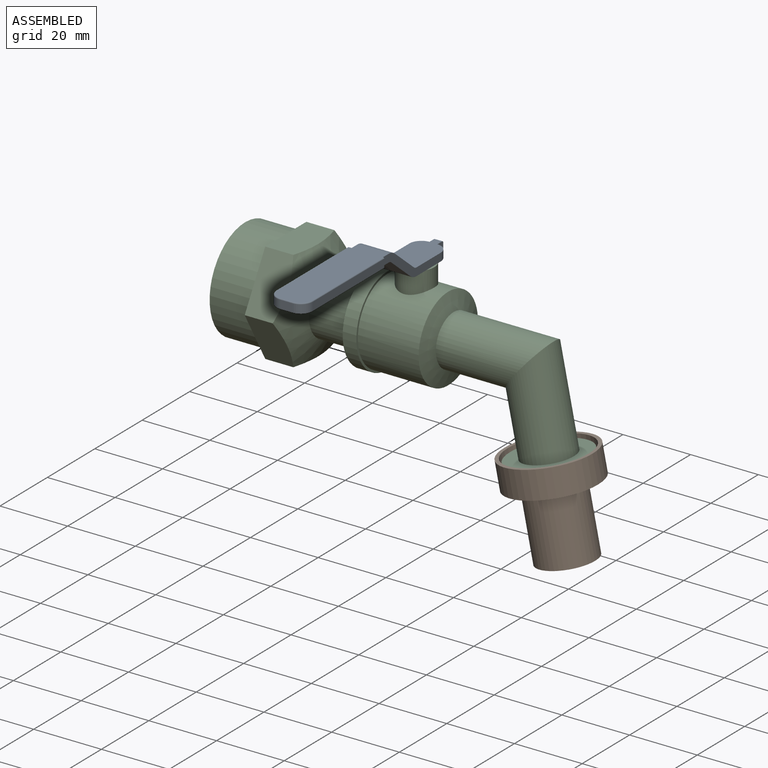
[diagram: assembled view]
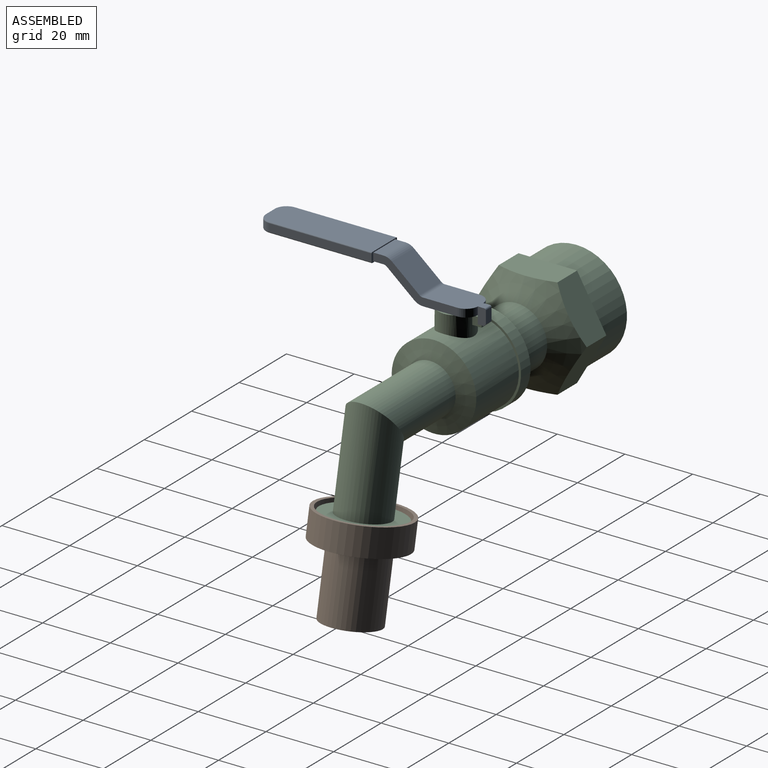
[diagram: assembled view, second angle]
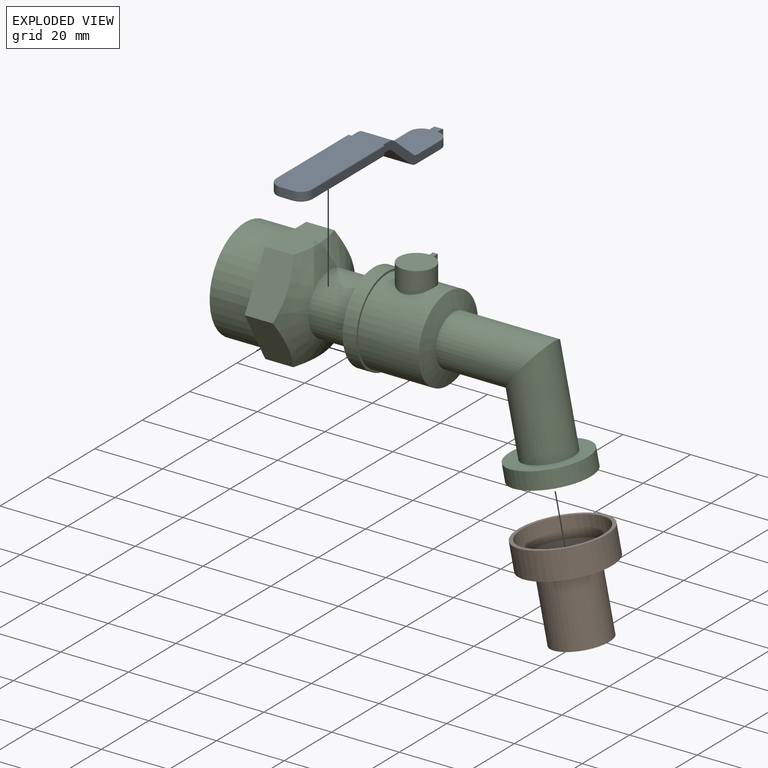
[diagram: exploded view]
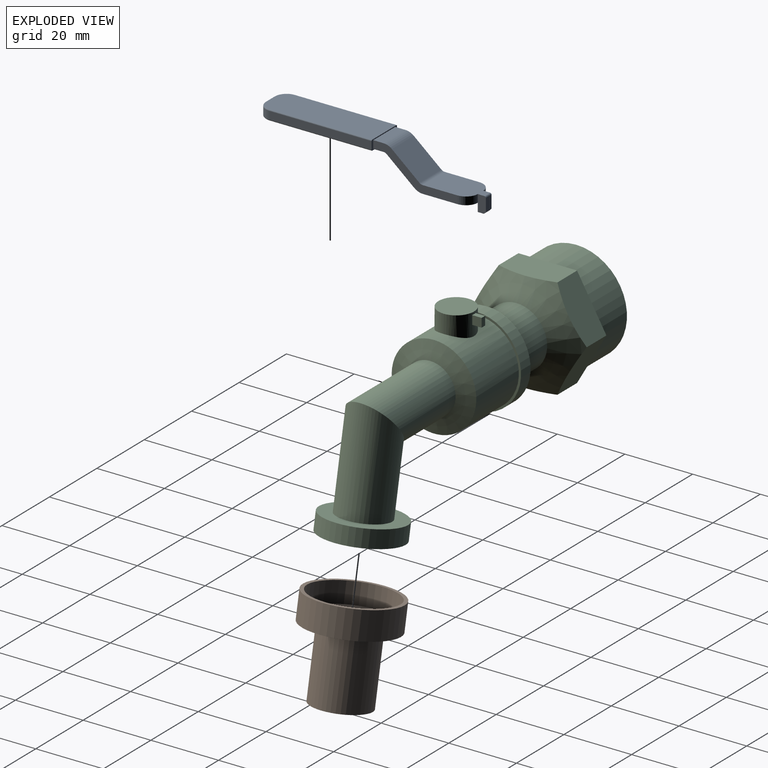
[diagram: exploded view, second angle]
ASSEMBLY  parts=3 mates=2
PART A: 39 faces, bbox 13.2x11.4x64.9 mm
  f0: plane 2.39x0.6mm, normal (0.71,0,-0.71), area 2mm2, adj f1,f2,f25,f26
  f1: plane 4.78x2.39mm, normal (0,1,0), area 11.2mm2, adj f0,f2,f23,f24,f25,f35
  f2: plane 3.74x2.39mm, normal (0,0,-1), area 8.9mm2, adj f0,f1,f23,f26
  f3: cylinder r=0.3mm len=30.13mm, axis (0,0,1), area 14.1mm2, adj f4,f8,f14,f18
  f4: torus R=3.29mm, axis (-1,0,0), area 2.6mm2, adj f3,f5,f8,f15
  f5: cylinder r=0.3mm len=3.59mm, axis (0,-1,0), area 1.7mm2, adj f4,f6,f8,f16
  f6: torus R=3.29mm, axis (-1,0,0), area 2.6mm2, adj f5,f7,f8,f17
  f7: cylinder r=0.3mm len=30.13mm, axis (0,0,-1), area 14.1mm2, adj f6,f8,f18,f19
  f8: plane 33.42x10.16mm, normal (1,0,0), area 334.9mm2, adj f3,f4,f5,f6,f7,f18
  f9: cylinder r=0.3mm len=30.13mm, axis (0,0,1), area 14.1mm2, adj f10,f18,f19,f20
  f10: torus R=3.29mm, axis (1,0,0), area 2.6mm2, adj f9,f11,f17,f20
  f11: cylinder r=0.3mm len=3.59mm, axis (0,-1,0), area 1.7mm2, adj f10,f12,f16,f20
  f12: torus R=3.29mm, axis (1,0,0), area 2.6mm2, adj f11,f13,f15,f20
  f13: cylinder r=0.3mm len=30.13mm, axis (0,0,-1), area 14.1mm2, adj f12,f14,f18,f20
  f14: plane 30.13x2.33mm, normal (0,1,0), area 70.2mm2, adj f3,f13,f15,f18
  f15: cylinder r=3.59mm len=3.59mm, axis (-1,0,0), area 13.1mm2, adj f4,f12,f14,f16
  f16: plane 3.59x2.33mm, normal (0,0,1), area 8.4mm2, adj f5,f11,f15,f17
  f17: cylinder r=3.59mm len=3.59mm, axis (1,0,0), area 13.1mm2, adj f6,f10,f16,f19
  f18: plane 10.76x2.93mm, normal (0,0,-1), area 9.8mm2, adj f3,f7,f8,f9,f13,f14,f19,f20
  f19: plane 30.13x2.33mm, normal (0,-1,0), area 70.2mm2, adj f7,f9,f17,f18
  f20: plane 33.42x10.16mm, normal (-1,0,0), area 334.9mm2, adj f9,f10,f11,f12,f13,f18
  f21: plane 24.86x10.43mm, normal (0,-1,0), area 64.4mm2, adj f18,f22,f27,f28,f30,f31,f32,f33
  f22: plane 9.26x2.99mm, normal (-1,0,0), area 27.7mm2, adj f18,f21,f27,f29
  f23: cylinder r=0.45mm len=2.39mm, axis (0,1,0), area 1.7mm2, adj f1,f2,f26,f35
  f24: plane 4.78x2.39mm, normal (0,0,1), area 6.6mm2, adj f1,f25,f26,f31,f35,f36,f37
  f25: plane 2.39x1.79mm, normal (1,0,0), area 4.3mm2, adj f0,f1,f24,f26
  f26: plane 4.78x2.39mm, normal (0,-1,0), area 11.2mm2, adj f0,f2,f23,f24,f25,f35
  f27: cylinder r=3.89mm len=9.26mm, axis (0,-1,0), area 25.1mm2, adj f21,f22,f28,f29
  f28: plane 9.26x8.15mm, normal (-0.77,0,-0.64), area 98.6mm2, adj f21,f27,f29,f34
  f29: plane 24.86x10.43mm, normal (0,1,0), area 64.4mm2, adj f18,f22,f27,f28,f30,f31,f32,f33
  f30: cylinder r=3.89mm len=9.26mm, axis (0,-1,0), area 25.1mm2, adj f21,f29,f31,f38
  f31: plane 13.83x9.26mm, normal (1,0,0), area 122.6mm2, adj f21,f24,f29,f30,f36,f37
  f32: cylinder r=1.49mm len=9.26mm, axis (0,-1,0), area 9.7mm2, adj f21,f29,f33,f38
  f33: plane 9.26x3.01mm, normal (1,0,0), area 27.9mm2, adj f18,f21,f29,f32
  f34: cylinder r=1.49mm len=9.26mm, axis (0,-1,0), area 9.7mm2, adj f21,f28,f29,f35
  f35: plane 15.79x9.26mm, normal (-1,0,0), area 127.4mm2, adj f1,f21,f23,f24,f26,f29,f34,f36
  f36: cylinder r=3.59mm len=3.59mm, axis (1,0,0), area 13.1mm2, adj f24,f29,f31,f35
  f37: cylinder r=3.59mm len=3.59mm, axis (-1,0,0), area 13.1mm2, adj f21,f24,f31,f35
  f38: plane 9.26x8.15mm, normal (0.77,0,0.64), area 98.6mm2, adj f21,f29,f30,f32
PART B: 8 faces, bbox 27.6x26.5x31.8 mm
  f0: cylinder r=12.18mm len=25.07mm, axis (-0.2,0,0.98), area 459.2mm2, adj f2,f4
  f1: cylinder r=13.27mm len=27.61mm, axis (-0.2,0,0.98), area 667mm2, adj f2,f3
  f2: plane 26.54x26mm, normal (0.2,0,-0.98), area 87mm2, adj f0,f1
  f3: plane 26.54x26mm, normal (-0.2,0,0.98), area 333.9mm2, adj f1,f5
  f4: plane 24.36x23.87mm, normal (0.2,0,-0.98), area 331.7mm2, adj f0,f7
  f5: cylinder r=8.36mm len=22.95mm, axis (0.2,0,-0.98), area 1050mm2, adj f3,f6
  f6: plane 16.71x16.37mm, normal (-0.2,0,0.98), area 84.9mm2, adj f5,f7
  f7: cylinder r=6.54mm len=24.18mm, axis (-0.2,0,0.98), area 904.4mm2, adj f4,f6
PART C: 46 faces, bbox 103.5x36.1x49.6 mm
  f0: cylinder r=5.25mm len=10.51mm, axis (0,0,-1), area 193.3mm2, adj f1,f40,f41,f42,f43,f44
  f1: cylinder r=12.5mm len=25mm, axis (-1,0,0), area 1321.5mm2, adj f0,f26,f34
  f2: cone r=12.5mm half-angle=72.5deg, axis (-1,0,0), area 8.3mm2, adj f27,f30
  f3: cylinder r=12.5mm len=25mm, axis (-1,0,0), area 942.5mm2, adj f5,f18
  f4: cylinder r=15mm len=30mm, axis (-1,0,0), area 1131mm2, adj f5,f12,f13,f14,f15,f16,f17
  f5: plane 30x30mm, normal (-1,0,0), area 216mm2, adj f3,f4
  f6: plane 15.02x9.64mm, normal (0,0.87,-0.5), area 158.9mm2, adj f7,f11,f16,f17,f28
  f7: plane 17.33x9.64mm, normal (0,0,-1), area 158.9mm2, adj f6,f8,f12,f17,f28
  f8: plane 15.02x9.64mm, normal (0,-0.87,-0.5), area 158.9mm2, adj f7,f9,f12,f13,f28
  f9: plane 15.02x9.64mm, normal (0,-0.87,0.5), area 158.9mm2, adj f8,f10,f13,f14,f28
  f10: plane 18.75x11.06mm, normal (0,0,1), area 158.9mm2, adj f9,f11,f14,f15,f28
  f11: plane 15.02x9.64mm, normal (0,0.87,0.5), area 158.9mm2, adj f6,f10,f15,f16,f28
  f12: plane 12.99x7.5mm, normal (-1,0,0), area 12.1mm2, adj f4,f7,f8
  f13: plane 15x4.33mm, normal (-1,0,0), area 12.1mm2, adj f4,f8,f9
  f14: plane 12.99x7.5mm, normal (-1,0,0), area 12.1mm2, adj f4,f9,f10
  f15: plane 12.99x7.5mm, normal (-1,0,0), area 12.1mm2, adj f4,f10,f11
  f16: plane 15x4.33mm, normal (-1,0,0), area 12.1mm2, adj f4,f6,f11
  f17: plane 12.99x7.5mm, normal (-1,0,0), area 12.1mm2, adj f4,f6,f7
  f18: plane 25x25mm, normal (-1,0,0), area 38.5mm2, adj f3,f21
  f19: cylinder r=7mm len=26mm, axis (1,0,0), area 1143.5mm2, adj f21,f24
  f20: cylinder r=9mm len=18mm, axis (-1,0,0), area 729.5mm2, adj f23,f28
  f21: cone r=12mm half-angle=45deg, axis (-1,0,0), area 422.1mm2, adj f18,f19
  f22: cylinder r=9mm len=18mm, axis (-1,0,0), area 961.3mm2, adj f24,f25
  f23: plane 26.27x26.27mm, normal (-1,0,0), area 287.6mm2, adj f20,f33
  f24: plane 18x18mm, normal (1,0,0), area 100.5mm2, adj f19,f22
  f25: plane 18x18mm, normal (-1,0,0), area 148.5mm2, adj f22,f27
  f26: cone r=12.5mm half-angle=72.5deg, axis (-1,0,0), area 329.4mm2, adj f1,f32
  f27: cylinder r=5.81mm len=11.61mm, axis (-1,0,0), area 77mm2, adj f2,f25
  f28: cone r=21.3mm half-angle=60deg, axis (-1,0,0), area 614.3mm2, adj f6,f7,f8,f9,f10,f11,f20
  f29: cylinder r=6.02mm len=31.25mm, axis (0.2,0,-0.98), area 927.5mm2, adj f30,f39
  f30: cylinder r=6.02mm len=27.87mm, axis (1,0,0), area 868.3mm2, adj f2,f29
  f31: cylinder r=7.5mm len=32.05mm, axis (0.2,0,-0.98), area 1108.4mm2, adj f32,f38
  f32: cylinder r=7.5mm len=29.54mm, axis (1,0,0), area 1103.8mm2, adj f26,f31
  f33: cylinder r=13.14mm len=26.27mm, axis (-1,0,0), area 333.6mm2, adj f23,f34
  f34: plane 26.27x26.27mm, normal (1,0,0), area 51.2mm2, adj f1,f33
  f35: cylinder r=7.5mm len=15.5mm, axis (-0.2,0,0.98), area 188.5mm2, adj f37,f39
  f36: cylinder r=11.63mm len=23.79mm, axis (-0.2,0,0.98), area 365.3mm2, adj f37,f38
  f37: plane 23.26x22.78mm, normal (0.2,0,-0.98), area 248.1mm2, adj f35,f36
  f38: plane 23.26x22.78mm, normal (-0.2,0,0.98), area 248.1mm2, adj f31,f36
  f39: plane 15x14.69mm, normal (0.2,0,-0.98), area 62.9mm2, adj f29,f35
  f40: plane 10.51x10.51mm, normal (0,0,1), area 86.7mm2, adj f0
  f41: plane 2.8x2.59mm, normal (-1,0,0), area 7.3mm2, adj f0,f43,f44,f45
  f42: plane 2.79x2.59mm, normal (1,0,0), area 7.2mm2, adj f0,f43,f44,f45
  f43: plane 2.8x1.45mm, normal (0,0,-1), area 4mm2, adj f0,f41,f42,f45
  f44: plane 2.8x1.45mm, normal (0,0,1), area 4mm2, adj f0,f41,f42,f45
  f45: plane 2.59x1.45mm, normal (0,1,0), area 3.8mm2, adj f41,f42,f43,f44
PLACE A rot(axis=(0.58,0.58,-0.58),120deg) t=(38.18,1.16,-46.33)mm
PLACE B rot(axis=(0.98,0,0.2),180deg) t=(8.95,10.97,-125.6)mm
PLACE C t=(-15.23,10.97,-9.88)mm
MATE fastened B.f5 <-> C.f35  axis (0.2,0,-0.98) through (75.5,10.97,-37.82)mm
MATE fastened A.f31 <-> C.f0  axis (0,0,-1) through (35.37,10.97,8.02)mm
